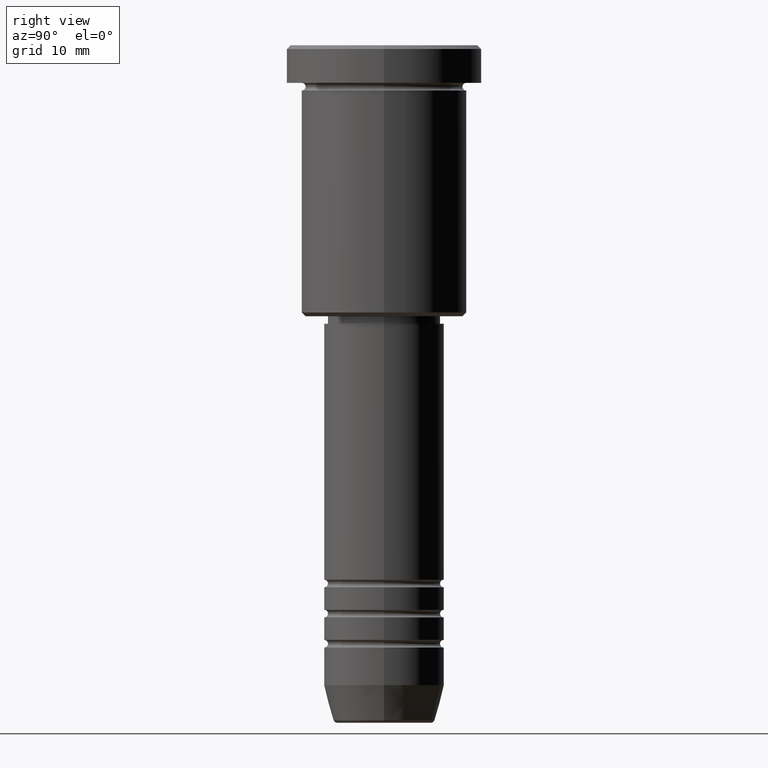
[diagram: clean part render]
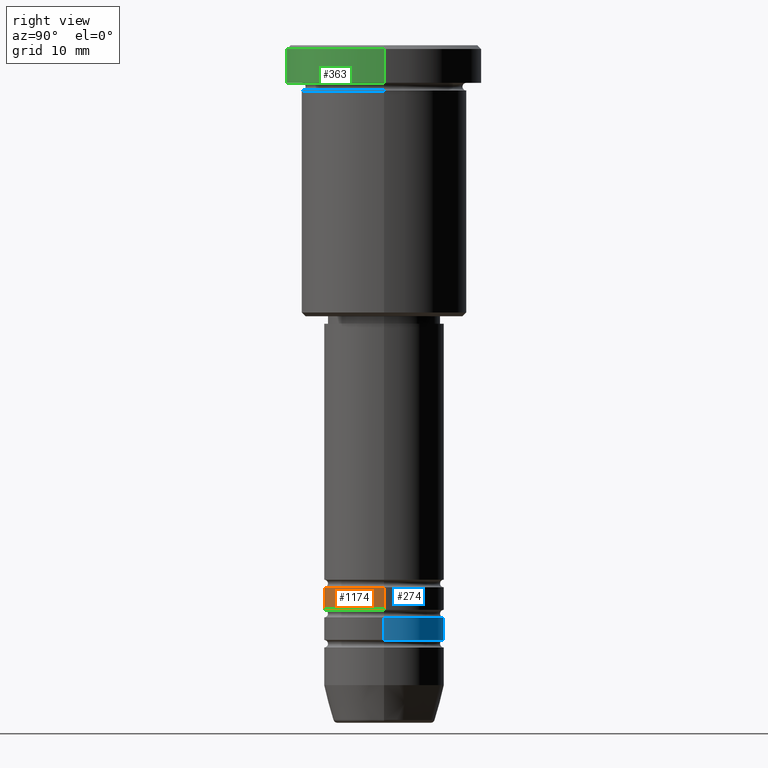
[diagram: same view with three faces highlighted in distinct colors, each labeled with its STEP entity id]
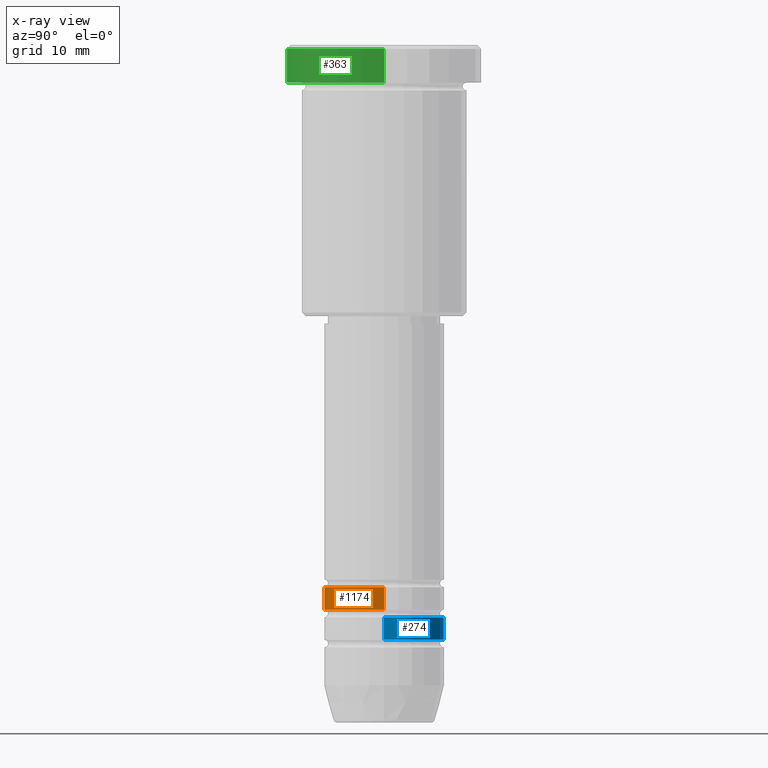
[diagram: x-ray of the same camera — body ghosted, the three highlighted faces saturated]
A machine part, right view with three faces highlighted in distinct colors.
The next image is the same camera in x-ray (body ghosted, the three faces saturated) — at least one of them is partly hidden behind the body in this view.
Their STEP definitions:

[orange] entity #1174 — the highlighted cylindrical surface (partial cylindrical patch) has radius 8 mm, axis along (-0, -0, 1).
#12 = CARTESIAN_POINT ( 'NONE',  ( 0.000000000000000000, 0.000000000000000000, -71.99999999999998579 ) ) ;
#48 = CARTESIAN_POINT ( 'NONE',  ( -8.000000000000003553, 9.797174393178829602E-16, -74.99999999999998579 ) ) ;
#110 = CARTESIAN_POINT ( 'NONE',  ( 8.000000000000003553, 0.000000000000000000, -74.99999999999998579 ) ) ;
#129 = DIRECTION ( 'NONE',  ( -0.000000000000000000, -0.000000000000000000, 1.000000000000000000 ) ) ;
#140 = VERTEX_POINT ( 'NONE', #110 ) ;
#164 = DIRECTION ( 'NONE',  ( 1.000000000000000000, 0.000000000000000000, 0.000000000000000000 ) ) ;
#188 = CARTESIAN_POINT ( 'NONE',  ( 8.000000000000000000, 0.000000000000000000, -71.99999999999998579 ) ) ;
#200 = EDGE_LOOP ( 'NONE', ( #1055, #517, #1169, #561 ) ) ;
#229 = CIRCLE ( 'NONE', #809, 8.000000000000000000 ) ;
#242 = EDGE_CURVE ( 'NONE', #573, #314, #606, .T. ) ;
#249 = CARTESIAN_POINT ( 'NONE',  ( -8.000000000000001776, 9.797174393178827630E-16, 0.000000000000000000 ) ) ;
#303 = EDGE_CURVE ( 'NONE', #573, #140, #460, .T. ) ;
#314 = VERTEX_POINT ( 'NONE', #324 ) ;
#324 = CARTESIAN_POINT ( 'NONE',  ( -8.000000000000000000, 9.797174393178827630E-16, -71.99999999999998579 ) ) ;
#414 = AXIS2_PLACEMENT_3D ( 'NONE', #986, #779, #164 ) ;
#449 = CARTESIAN_POINT ( 'NONE',  ( 0.000000000000000000, 0.000000000000000000, 0.000000000000000000 ) ) ;
#460 = CIRCLE ( 'NONE', #414, 8.000000000000003553 ) ;
#471 = VECTOR ( 'NONE', #973, 1000.000000000000000 ) ;
#478 = AXIS2_PLACEMENT_3D ( 'NONE', #449, #1020, #849 ) ;
#517 = ORIENTED_EDGE ( 'NONE', *, *, #303, .T. ) ;
#561 = ORIENTED_EDGE ( 'NONE', *, *, #656, .F. ) ;
#573 = VERTEX_POINT ( 'NONE', #48 ) ;
#584 = LINE ( 'NONE', #1127, #648 ) ;
#606 = LINE ( 'NONE', #249, #471 ) ;
#630 = FACE_OUTER_BOUND ( 'NONE', #200, .T. ) ;
#643 = DIRECTION ( 'NONE',  ( 1.000000000000000000, 0.000000000000000000, 0.000000000000000000 ) ) ;
#648 = VECTOR ( 'NONE', #129, 1000.000000000000000 ) ;
#656 = EDGE_CURVE ( 'NONE', #314, #659, #229, .T. ) ;
#659 = VERTEX_POINT ( 'NONE', #188 ) ;
#779 = DIRECTION ( 'NONE',  ( -0.000000000000000000, -0.000000000000000000, 1.000000000000000000 ) ) ;
#809 = AXIS2_PLACEMENT_3D ( 'NONE', #12, #930, #643 ) ;
#849 = DIRECTION ( 'NONE',  ( 1.000000000000000000, 0.000000000000000000, 0.000000000000000000 ) ) ;
#930 = DIRECTION ( 'NONE',  ( -0.000000000000000000, -0.000000000000000000, 1.000000000000000000 ) ) ;
#973 = DIRECTION ( 'NONE',  ( -0.000000000000000000, -0.000000000000000000, 1.000000000000000000 ) ) ;
#986 = CARTESIAN_POINT ( 'NONE',  ( 0.000000000000000000, 0.000000000000000000, -74.99999999999998579 ) ) ;
#1020 = DIRECTION ( 'NONE',  ( -0.000000000000000000, -0.000000000000000000, 1.000000000000000000 ) ) ;
#1035 = EDGE_CURVE ( 'NONE', #140, #659, #584, .T. ) ;
#1055 = ORIENTED_EDGE ( 'NONE', *, *, #242, .F. ) ;
#1098 = CYLINDRICAL_SURFACE ( 'NONE', #478, 8.000000000000001776 ) ;
#1127 = CARTESIAN_POINT ( 'NONE',  ( 8.000000000000001776, 0.000000000000000000, 0.000000000000000000 ) ) ;
#1169 = ORIENTED_EDGE ( 'NONE', *, *, #1035, .T. ) ;
#1174 = ADVANCED_FACE ( 'NONE', ( #630 ), #1098, .T. ) ;

[blue] entity #274 — the highlighted cylindrical surface (partial cylindrical patch) has radius 8 mm, axis along (-0, -0, 1).
#15 = AXIS2_PLACEMENT_3D ( 'NONE', #1023, #568, #739 ) ;
#49 = ORIENTED_EDGE ( 'NONE', *, *, #1011, .T. ) ;
#57 = AXIS2_PLACEMENT_3D ( 'NONE', #487, #1058, #385 ) ;
#101 = ORIENTED_EDGE ( 'NONE', *, *, #120, .F. ) ;
#103 = ORIENTED_EDGE ( 'NONE', *, *, #167, .F. ) ;
#120 = EDGE_CURVE ( 'NONE', #964, #280, #506, .T. ) ;
#123 = DIRECTION ( 'NONE',  ( -0.000000000000000000, -0.000000000000000000, 1.000000000000000000 ) ) ;
#146 = FACE_OUTER_BOUND ( 'NONE', #609, .T. ) ;
#167 = EDGE_CURVE ( 'NONE', #950, #964, #944, .T. ) ;
#274 = ADVANCED_FACE ( 'NONE', ( #146 ), #447, .T. ) ;
#280 = VERTEX_POINT ( 'NONE', #387 ) ;
#316 = EDGE_CURVE ( 'NONE', #653, #280, #1054, .T. ) ;
#342 = VECTOR ( 'NONE', #123, 1000.000000000000000 ) ;
#381 = CARTESIAN_POINT ( 'NONE',  ( 0.000000000000000000, 0.000000000000000000, 0.000000000000000000 ) ) ;
#385 = DIRECTION ( 'NONE',  ( 1.000000000000000000, 0.000000000000000000, 0.000000000000000000 ) ) ;
#387 = CARTESIAN_POINT ( 'NONE',  ( -8.000000000000000000, 9.797174393178825657E-16, -75.99999999999998579 ) ) ;
#447 = CYLINDRICAL_SURFACE ( 'NONE', #472, 8.000000000000000000 ) ;
#462 = CIRCLE ( 'NONE', #57, 8.000000000000000000 ) ;
#472 = AXIS2_PLACEMENT_3D ( 'NONE', #381, #1044, #481 ) ;
#481 = DIRECTION ( 'NONE',  ( 1.000000000000000000, 0.000000000000000000, 0.000000000000000000 ) ) ;
#487 = CARTESIAN_POINT ( 'NONE',  ( 0.000000000000000000, 0.000000000000000000, -78.99999999999997158 ) ) ;
#506 = CIRCLE ( 'NONE', #15, 8.000000000000000000 ) ;
#568 = DIRECTION ( 'NONE',  ( -0.000000000000000000, -0.000000000000000000, 1.000000000000000000 ) ) ;
#570 = VECTOR ( 'NONE', #789, 1000.000000000000000 ) ;
#601 = CARTESIAN_POINT ( 'NONE',  ( -8.000000000000000000, 9.797174393178825657E-16, 0.000000000000000000 ) ) ;
#609 = EDGE_LOOP ( 'NONE', ( #49, #687, #101, #103 ) ) ;
#653 = VERTEX_POINT ( 'NONE', #1086 ) ;
#687 = ORIENTED_EDGE ( 'NONE', *, *, #316, .T. ) ;
#692 = CARTESIAN_POINT ( 'NONE',  ( 8.000000000000000000, 0.000000000000000000, 0.000000000000000000 ) ) ;
#739 = DIRECTION ( 'NONE',  ( 1.000000000000000000, 0.000000000000000000, 0.000000000000000000 ) ) ;
#789 = DIRECTION ( 'NONE',  ( -0.000000000000000000, -0.000000000000000000, 1.000000000000000000 ) ) ;
#944 = LINE ( 'NONE', #692, #342 ) ;
#950 = VERTEX_POINT ( 'NONE', #1041 ) ;
#953 = CARTESIAN_POINT ( 'NONE',  ( 8.000000000000000000, 0.000000000000000000, -75.99999999999998579 ) ) ;
#964 = VERTEX_POINT ( 'NONE', #953 ) ;
#1011 = EDGE_CURVE ( 'NONE', #950, #653, #462, .T. ) ;
#1023 = CARTESIAN_POINT ( 'NONE',  ( 0.000000000000000000, 0.000000000000000000, -75.99999999999998579 ) ) ;
#1041 = CARTESIAN_POINT ( 'NONE',  ( 8.000000000000000000, 0.000000000000000000, -78.99999999999997158 ) ) ;
#1044 = DIRECTION ( 'NONE',  ( -0.000000000000000000, -0.000000000000000000, 1.000000000000000000 ) ) ;
#1054 = LINE ( 'NONE', #601, #570 ) ;
#1058 = DIRECTION ( 'NONE',  ( -0.000000000000000000, -0.000000000000000000, 1.000000000000000000 ) ) ;
#1086 = CARTESIAN_POINT ( 'NONE',  ( -8.000000000000000000, 9.797174393178825657E-16, -78.99999999999997158 ) ) ;

[green] entity #363 — the highlighted cylindrical surface (partial cylindrical patch) has radius 13 mm, axis along (-0, -0, 1).
#35 = CARTESIAN_POINT ( 'NONE',  ( -13.00000000000000000, 1.592040838891559095E-15, -5.000000000000000000 ) ) ;
#65 = DIRECTION ( 'NONE',  ( -0.000000000000000000, -0.000000000000000000, 1.000000000000000000 ) ) ;
#126 = DIRECTION ( 'NONE',  ( 1.000000000000000000, 0.000000000000000000, 0.000000000000000000 ) ) ;
#127 = DIRECTION ( 'NONE',  ( 0.000000000000000000, 0.000000000000000000, -1.000000000000000000 ) ) ;
#147 = ORIENTED_EDGE ( 'NONE', *, *, #1082, .F. ) ;
#169 = LINE ( 'NONE', #499, #177 ) ;
#177 = VECTOR ( 'NONE', #871, 1000.000000000000000 ) ;
#221 = VERTEX_POINT ( 'NONE', #727 ) ;
#223 = ORIENTED_EDGE ( 'NONE', *, *, #569, .T. ) ;
#268 = EDGE_CURVE ( 'NONE', #221, #774, #635, .T. ) ;
#306 = FACE_OUTER_BOUND ( 'NONE', #821, .T. ) ;
#339 = VERTEX_POINT ( 'NONE', #35 ) ;
#363 = ADVANCED_FACE ( 'NONE', ( #306 ), #867, .T. ) ;
#415 = CARTESIAN_POINT ( 'NONE',  ( -13.00000000000000000, 1.592040838891559095E-15, 0.000000000000000000 ) ) ;
#419 = ORIENTED_EDGE ( 'NONE', *, *, #705, .T. ) ;
#426 = CARTESIAN_POINT ( 'NONE',  ( 0.000000000000000000, 0.000000000000000000, -5.000000000000000000 ) ) ;
#432 = DIRECTION ( 'NONE',  ( -0.000000000000000000, -0.000000000000000000, 1.000000000000000000 ) ) ;
#476 = VERTEX_POINT ( 'NONE', #586 ) ;
#499 = CARTESIAN_POINT ( 'NONE',  ( 13.00000000000000000, 0.000000000000000000, 0.000000000000000000 ) ) ;
#569 = EDGE_CURVE ( 'NONE', #476, #221, #169, .T. ) ;
#586 = CARTESIAN_POINT ( 'NONE',  ( 13.00000000000000000, 0.000000000000000000, -5.000000000000000000 ) ) ;
#635 = CIRCLE ( 'NONE', #937, 13.00000000000000000 ) ;
#665 = AXIS2_PLACEMENT_3D ( 'NONE', #426, #432, #760 ) ;
#673 = CARTESIAN_POINT ( 'NONE',  ( 0.000000000000000000, 0.000000000000000000, 0.000000000000000000 ) ) ;
#674 = CARTESIAN_POINT ( 'NONE',  ( 0.000000000000000000, 0.000000000000000000, -0.5000000000000073275 ) ) ;
#678 = DIRECTION ( 'NONE',  ( 1.000000000000000000, 0.000000000000000000, 0.000000000000000000 ) ) ;
#705 = EDGE_CURVE ( 'NONE', #339, #476, #977, .T. ) ;
#709 = AXIS2_PLACEMENT_3D ( 'NONE', #673, #951, #126 ) ;
#727 = CARTESIAN_POINT ( 'NONE',  ( 13.00000000000000000, 0.000000000000000000, -0.5000000000000073275 ) ) ;
#760 = DIRECTION ( 'NONE',  ( 1.000000000000000000, 0.000000000000000000, 0.000000000000000000 ) ) ;
#774 = VERTEX_POINT ( 'NONE', #801 ) ;
#801 = CARTESIAN_POINT ( 'NONE',  ( -13.00000000000000000, 1.592040838891559095E-15, -0.5000000000000073275 ) ) ;
#821 = EDGE_LOOP ( 'NONE', ( #147, #419, #223, #1151 ) ) ;
#867 = CYLINDRICAL_SURFACE ( 'NONE', #709, 13.00000000000000000 ) ;
#871 = DIRECTION ( 'NONE',  ( -0.000000000000000000, -0.000000000000000000, 1.000000000000000000 ) ) ;
#902 = LINE ( 'NONE', #415, #957 ) ;
#937 = AXIS2_PLACEMENT_3D ( 'NONE', #674, #127, #678 ) ;
#951 = DIRECTION ( 'NONE',  ( -0.000000000000000000, -0.000000000000000000, 1.000000000000000000 ) ) ;
#957 = VECTOR ( 'NONE', #65, 1000.000000000000000 ) ;
#977 = CIRCLE ( 'NONE', #665, 13.00000000000000000 ) ;
#1082 = EDGE_CURVE ( 'NONE', #339, #774, #902, .T. ) ;
#1151 = ORIENTED_EDGE ( 'NONE', *, *, #268, .T. ) ;